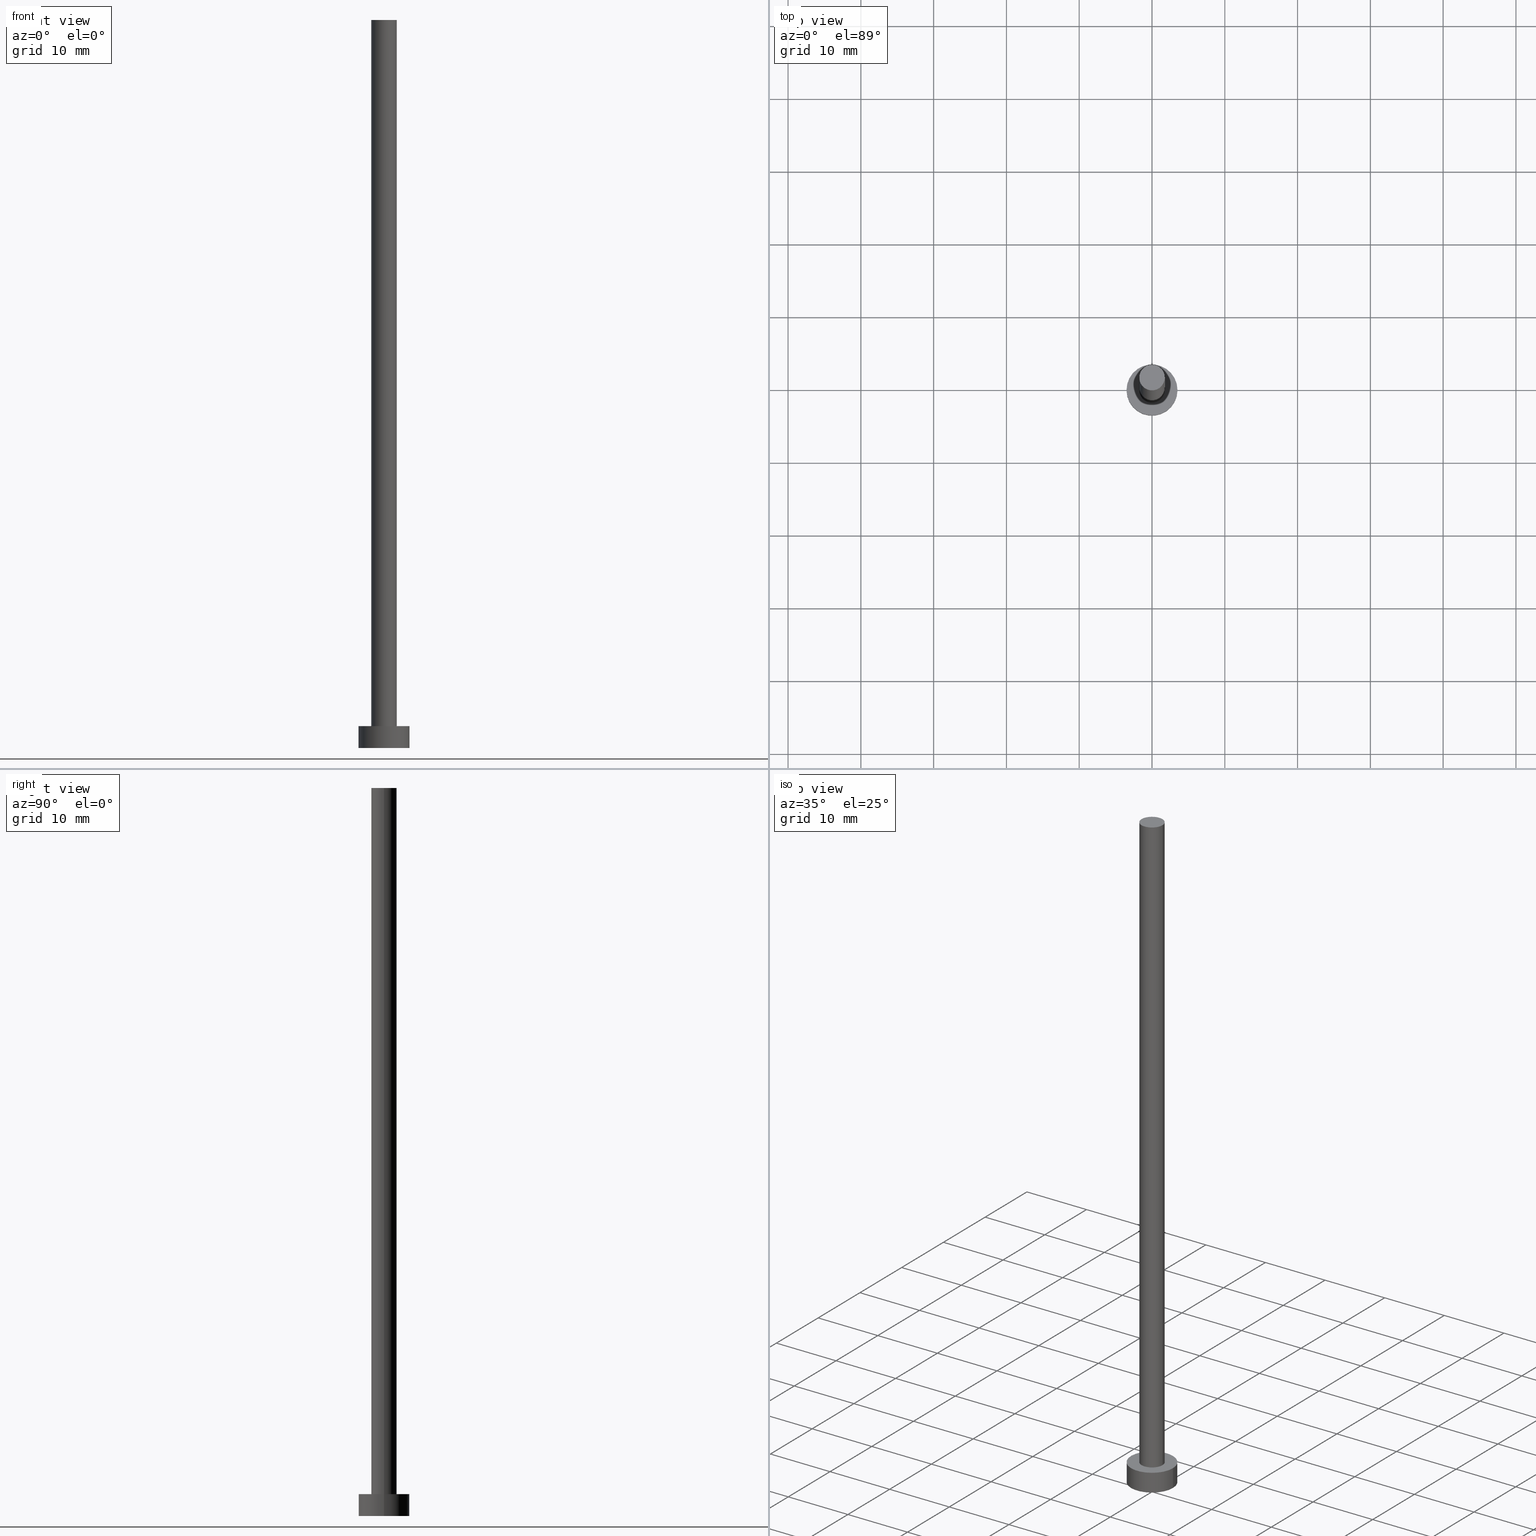
[diagram: canonical four-view strip — front | top / right | iso, engineering-drawing reading convention]
A machine part, canonical four-view strip (front | top / right | iso — engineering-drawing reading convention). The complete STEP part file that produces these views, byte-faithful:
ISO-10303-21;
HEADER;
FILE_DESCRIPTION (( 'STEP AP203' ),
    '1' );
FILE_NAME ('6c43.STEP',
    '2023-02-13T16:24:13',
    ( '' ),
    ( '' ),
    'SwSTEP 2.0',
    'SolidWorks 2019',
    '' );
FILE_SCHEMA (( 'CONFIG_CONTROL_DESIGN' ));
ENDSEC;

DATA;
#1 = PERSON_AND_ORGANIZATION ( #102, #146 ) ;
#2 = CARTESIAN_POINT ( 'NONE',  ( 0.000000000000000000, 0.000000000000000000, 100.0000000000000000 ) ) ;
#3 = PERSON_AND_ORGANIZATION ( #102, #146 ) ;
#4 = DIRECTION ( 'NONE',  ( 1.000000000000000000, 0.000000000000000000, 0.000000000000000000 ) ) ;
#5 = PERSON_AND_ORGANIZATION ( #102, #146 ) ;
#6 = DATE_AND_TIME ( #145, #234 ) ;
#7 = EDGE_CURVE ( 'NONE', #201, #73, #162, .T. ) ;
#8 = CARTESIAN_POINT ( 'NONE',  ( 1.750000000000000000, 2.143131898507867804E-16, 100.0000000000000000 ) ) ;
#9 = CARTESIAN_POINT ( 'NONE',  ( 0.000000000000000000, 0.000000000000000000, 100.0000000000000000 ) ) ;
#10 = CARTESIAN_POINT ( 'NONE',  ( 0.000000000000000000, 0.000000000000000000, 3.000000000000000000 ) ) ;
#11 = VERTEX_POINT ( 'NONE', #252 ) ;
#12 = ADVANCED_FACE ( 'NONE', ( #198 ), #95, .T. ) ;
#13 = EDGE_CURVE ( 'NONE', #233, #201, #217, .T. ) ;
#14 = ORIENTED_EDGE ( 'NONE', *, *, #24, .F. ) ;
#15 = APPLICATION_CONTEXT ( 'configuration controlled 3d designs of mechanical parts and assemblies' ) ;
#16 = DIRECTION ( 'NONE',  ( 1.000000000000000000, 0.000000000000000000, 0.000000000000000000 ) ) ;
#17 = DIRECTION ( 'NONE',  ( -1.000000000000000000, 0.000000000000000000, 0.000000000000000000 ) ) ;
#18 = PRODUCT ( '6c43', '6c43', '', ( #45 ) ) ;
#19 = AXIS2_PLACEMENT_3D ( 'NONE', #2, #194, #16 ) ;
#20 = DIRECTION ( 'NONE',  ( 0.000000000000000000, 0.000000000000000000, 1.000000000000000000 ) ) ;
#21 = CARTESIAN_POINT ( 'NONE',  ( 0.000000000000000000, 0.000000000000000000, 0.000000000000000000 ) ) ;
#22 = DIRECTION ( 'NONE',  ( -0.000000000000000000, -0.000000000000000000, -1.000000000000000000 ) ) ;
#23 = AXIS2_PLACEMENT_3D ( 'NONE', #149, #20, #109 ) ;
#24 = EDGE_CURVE ( 'NONE', #11, #192, #119, .T. ) ;
#25 = CALENDAR_DATE ( 2023, 13, 2 ) ;
#26 = ORIENTED_EDGE ( 'NONE', *, *, #206, .T. ) ;
#27 = APPROVAL_ROLE ( '' ) ;
#28 = MANIFOLD_SOLID_BREP ( 'P�idat vysunut�m3', #152 ) ;
#29 = SECURITY_CLASSIFICATION ( '', '', #125 ) ;
#30 = CC_DESIGN_PERSON_AND_ORGANIZATION_ASSIGNMENT ( #3, #158, ( #180 ) ) ;
#31 = PLANE ( 'NONE',  #227 ) ;
#32 = ORIENTED_EDGE ( 'NONE', *, *, #112, .F. ) ;
#33 = CARTESIAN_POINT ( 'NONE',  ( 1.750000000000000000, 2.143131898507867804E-16, 3.000000000000000000 ) ) ;
#34 = CYLINDRICAL_SURFACE ( 'NONE', #164, 3.500000000000000000 ) ;
#35 = EDGE_LOOP ( 'NONE', ( #246, #211 ) ) ;
#36 = CARTESIAN_POINT ( 'NONE',  ( 3.500000000000000000, 4.286263797015736595E-16, 3.000000000000000000 ) ) ;
#37 = DIRECTION ( 'NONE',  ( 0.000000000000000000, 0.000000000000000000, 1.000000000000000000 ) ) ;
#38 = CARTESIAN_POINT ( 'NONE',  ( 0.000000000000000000, 0.000000000000000000, 0.000000000000000000 ) ) ;
#39 = DATE_AND_TIME ( #105, #150 ) ;
#40 = CYLINDRICAL_SURFACE ( 'NONE', #247, 1.750000000000000000 ) ;
#41 = DATE_AND_TIME ( #179, #241 ) ;
#42 = DIRECTION ( 'NONE',  ( 1.000000000000000000, 0.000000000000000000, -0.000000000000000000 ) ) ;
#43 = PERSON_AND_ORGANIZATION_ROLE ( 'creator' ) ;
#44 = COORDINATED_UNIVERSAL_TIME_OFFSET ( 1, 0, .AHEAD. ) ;
#45 = MECHANICAL_CONTEXT ( 'NONE', #15, 'mechanical' ) ;
#46 = CC_DESIGN_PERSON_AND_ORGANIZATION_ASSIGNMENT ( #82, #178, ( #187 ) ) ;
#47 = ADVANCED_FACE ( 'NONE', ( #113, #81 ), #193, .T. ) ;
#48 = ORIENTED_EDGE ( 'NONE', *, *, #224, .F. ) ;
#49 = FACE_OUTER_BOUND ( 'NONE', #35, .T. ) ;
#50 = AXIS2_PLACEMENT_3D ( 'NONE', #219, #235, #96 ) ;
#51 = CARTESIAN_POINT ( 'NONE',  ( -1.750000000000000000, 0.000000000000000000, 3.000000000000000000 ) ) ;
#52 = EDGE_CURVE ( 'NONE', #55, #11, #54, .T. ) ;
#53 = ORIENTED_EDGE ( 'NONE', *, *, #24, .T. ) ;
#54 = CIRCLE ( 'NONE', #19, 1.750000000000000000 ) ;
#55 = VERTEX_POINT ( 'NONE', #236 ) ;
#56 = DESIGN_CONTEXT ( 'detailed design', #132, 'design' ) ;
#57 = ADVANCED_FACE ( 'NONE', ( #75 ), #40, .T. ) ;
#58 =( NAMED_UNIT ( * ) PLANE_ANGLE_UNIT ( ) SI_UNIT ( $, .RADIAN. ) );
#59 = AXIS2_PLACEMENT_3D ( 'NONE', #97, #175, #115 ) ;
#60 = AXIS2_PLACEMENT_3D ( 'NONE', #71, #91, #245 ) ;
#61 = EDGE_LOOP ( 'NONE', ( #147, #48 ) ) ;
#62 = DIRECTION ( 'NONE',  ( -1.000000000000000000, 0.000000000000000000, 0.000000000000000000 ) ) ;
#63 = PERSON_AND_ORGANIZATION_ROLE ( 'classification_officer' ) ;
#64 = CIRCLE ( 'NONE', #23, 1.750000000000000000 ) ;
#65 = APPROVAL_DATE_TIME ( #218, #139 ) ;
#66 = PERSON_AND_ORGANIZATION ( #102, #146 ) ;
#67 = DIRECTION ( 'NONE',  ( 1.000000000000000000, 0.000000000000000000, 0.000000000000000000 ) ) ;
#68 = EDGE_CURVE ( 'NONE', #192, #92, #199, .T. ) ;
#69 = LINE ( 'NONE', #8, #251 ) ;
#70 = ORIENTED_EDGE ( 'NONE', *, *, #52, .F. ) ;
#71 = CARTESIAN_POINT ( 'NONE',  ( 0.000000000000000000, 0.000000000000000000, 0.000000000000000000 ) ) ;
#72 = EDGE_LOOP ( 'NONE', ( #169, #107, #53, #110 ) ) ;
#73 = VERTEX_POINT ( 'NONE', #117 ) ;
#74 = EDGE_CURVE ( 'NONE', #73, #201, #213, .T. ) ;
#75 = FACE_OUTER_BOUND ( 'NONE', #72, .T. ) ;
#76 = DIRECTION ( 'NONE',  ( -0.000000000000000000, -0.000000000000000000, -1.000000000000000000 ) ) ;
#77 = DIRECTION ( 'NONE',  ( 1.000000000000000000, 0.000000000000000000, -0.000000000000000000 ) ) ;
#78 = ADVANCED_FACE ( 'NONE', ( #254 ), #154, .T. ) ;
#79 = CC_DESIGN_APPROVAL ( #174, ( #29 ) ) ;
#80 = DATE_TIME_ROLE ( 'classification_date' ) ;
#81 = FACE_OUTER_BOUND ( 'NONE', #159, .T. ) ;
#82 = PERSON_AND_ORGANIZATION ( #102, #146 ) ;
#83 = DIRECTION ( 'NONE',  ( -0.000000000000000000, -0.000000000000000000, -1.000000000000000000 ) ) ;
#84 = APPLICATION_PROTOCOL_DEFINITION ( 'international standard', 'config_control_design', 1994, #15 ) ;
#85 = SHAPE_DEFINITION_REPRESENTATION ( #86, #89 ) ;
#86 = PRODUCT_DEFINITION_SHAPE ( 'NONE', 'NONE',  #187 ) ;
#87 = CIRCLE ( 'NONE', #134, 3.500000000000000000 ) ;
#88 = LINE ( 'NONE', #148, #168 ) ;
#89 = ADVANCED_BREP_SHAPE_REPRESENTATION ( '6c43', ( #28, #155 ), #123 ) ;
#90 = DIRECTION ( 'NONE',  ( 0.000000000000000000, 0.000000000000000000, 1.000000000000000000 ) ) ;
#91 = DIRECTION ( 'NONE',  ( 0.000000000000000000, 0.000000000000000000, 1.000000000000000000 ) ) ;
#92 = VERTEX_POINT ( 'NONE', #33 ) ;
#93 = LOCAL_TIME ( 17, 24, 13.00000000000000000, #216 ) ;
#94 = CC_DESIGN_PERSON_AND_ORGANIZATION_ASSIGNMENT ( #238, #63, ( #29 ) ) ;
#95 = CYLINDRICAL_SURFACE ( 'NONE', #50, 1.750000000000000000 ) ;
#96 = DIRECTION ( 'NONE',  ( -1.000000000000000000, 0.000000000000000000, 0.000000000000000000 ) ) ;
#97 = CARTESIAN_POINT ( 'NONE',  ( 0.000000000000000000, 0.000000000000000000, 3.000000000000000000 ) ) ;
#98 = CC_DESIGN_PERSON_AND_ORGANIZATION_ASSIGNMENT ( #66, #184, ( #18 ) ) ;
#99 = FACE_OUTER_BOUND ( 'NONE', #140, .T. ) ;
#100 = ORIENTED_EDGE ( 'NONE', *, *, #161, .T. ) ;
#101 = CALENDAR_DATE ( 2023, 13, 2 ) ;
#102 = PERSON ( 'NEUR�EN�', 'NEUR�EN�', 'NEUR�EN�', ('NEUR�EN�'), ('NEUR�EN�'), ('NEUR�EN�') ) ;
#103 = CARTESIAN_POINT ( 'NONE',  ( 0.000000000000000000, 0.000000000000000000, 0.000000000000000000 ) ) ;
#104 = CC_DESIGN_PERSON_AND_ORGANIZATION_ASSIGNMENT ( #1, #43, ( #180 ) ) ;
#105 = CALENDAR_DATE ( 2023, 13, 2 ) ;
#106 = DIRECTION ( 'NONE',  ( 0.000000000000000000, 0.000000000000000000, 1.000000000000000000 ) ) ;
#107 = ORIENTED_EDGE ( 'NONE', *, *, #170, .F. ) ;
#108 = DIRECTION ( 'NONE',  ( 1.000000000000000000, 0.000000000000000000, 0.000000000000000000 ) ) ;
#109 = DIRECTION ( 'NONE',  ( 1.000000000000000000, 0.000000000000000000, 0.000000000000000000 ) ) ;
#110 = ORIENTED_EDGE ( 'NONE', *, *, #68, .T. ) ;
#111 = CARTESIAN_POINT ( 'NONE',  ( -1.750000000000000000, 0.000000000000000000, 100.0000000000000000 ) ) ;
#112 = EDGE_CURVE ( 'NONE', #209, #73, #88, .T. ) ;
#113 = FACE_BOUND ( 'NONE', #61, .T. ) ;
#114 = VECTOR ( 'NONE', #83, 1000.000000000000000 ) ;
#115 = DIRECTION ( 'NONE',  ( -1.000000000000000000, 0.000000000000000000, 0.000000000000000000 ) ) ;
#116 = AXIS2_PLACEMENT_3D ( 'NONE', #129, #90, #108 ) ;
#117 = CARTESIAN_POINT ( 'NONE',  ( -3.500000000000000000, 0.000000000000000000, 0.000000000000000000 ) ) ;
#118 = APPLICATION_PROTOCOL_DEFINITION ( 'international standard', 'config_control_design', 1994, #132 ) ;
#119 = LINE ( 'NONE', #111, #239 ) ;
#120 = DIRECTION ( 'NONE',  ( 0.000000000000000000, 0.000000000000000000, 1.000000000000000000 ) ) ;
#121 = CC_DESIGN_DATE_AND_TIME_ASSIGNMENT ( #223, #200, ( #187 ) ) ;
#122 = ORIENTED_EDGE ( 'NONE', *, *, #7, .F. ) ;
#123 =( GEOMETRIC_REPRESENTATION_CONTEXT ( 3 ) GLOBAL_UNCERTAINTY_ASSIGNED_CONTEXT ( ( #136 ) ) GLOBAL_UNIT_ASSIGNED_CONTEXT ( ( #177, #58, #255 ) ) REPRESENTATION_CONTEXT ( 'NONE', 'WORKASPACE' ) );
#124 = PERSON_AND_ORGANIZATION ( #102, #146 ) ;
#125 = SECURITY_CLASSIFICATION_LEVEL ( 'unclassified' ) ;
#126 = AXIS2_PLACEMENT_3D ( 'NONE', #171, #250, #42 ) ;
#127 = CC_DESIGN_SECURITY_CLASSIFICATION ( #29, ( #180 ) ) ;
#128 = EDGE_LOOP ( 'NONE', ( #249, #173, #212, #32 ) ) ;
#129 = CARTESIAN_POINT ( 'NONE',  ( 0.000000000000000000, 0.000000000000000000, 3.000000000000000000 ) ) ;
#130 = DIRECTION ( 'NONE',  ( 0.000000000000000000, 0.000000000000000000, 1.000000000000000000 ) ) ;
#131 = EDGE_LOOP ( 'NONE', ( #70, #100, #229, #14 ) ) ;
#132 = APPLICATION_CONTEXT ( 'configuration controlled 3d designs of mechanical parts and assemblies' ) ;
#133 = ORIENTED_EDGE ( 'NONE', *, *, #74, .F. ) ;
#134 = AXIS2_PLACEMENT_3D ( 'NONE', #10, #130, #137 ) ;
#135 = ORIENTED_EDGE ( 'NONE', *, *, #189, .F. ) ;
#136 = UNCERTAINTY_MEASURE_WITH_UNIT (LENGTH_MEASURE( 1.000000000000000082E-05 ), #177, 'distance_accuracy_value', 'NONE');
#137 = DIRECTION ( 'NONE',  ( 1.000000000000000000, 0.000000000000000000, 0.000000000000000000 ) ) ;
#138 = AXIS2_PLACEMENT_3D ( 'NONE', #38, #210, #67 ) ;
#139 = APPROVAL ( #242, 'NEUR�EN�' ) ;
#140 = EDGE_LOOP ( 'NONE', ( #153, #135, #228, #230 ) ) ;
#141 = APPROVAL_STATUS ( 'not_yet_approved' ) ;
#142 = CARTESIAN_POINT ( 'NONE',  ( 0.000000000000000000, 0.000000000000000000, 3.000000000000000000 ) ) ;
#143 = COORDINATED_UNIVERSAL_TIME_OFFSET ( 1, 0, .AHEAD. ) ;
#144 = LOCAL_TIME ( 17, 24, 13.00000000000000000, #222 ) ;
#145 = CALENDAR_DATE ( 2023, 13, 2 ) ;
#146 = ORGANIZATION ( 'NEUR�EN�', 'NEUR�EN�', '' ) ;
#147 = ORIENTED_EDGE ( 'NONE', *, *, #68, .F. ) ;
#148 = CARTESIAN_POINT ( 'NONE',  ( -3.500000000000000000, 0.000000000000000000, 3.000000000000000000 ) ) ;
#149 = CARTESIAN_POINT ( 'NONE',  ( 0.000000000000000000, 0.000000000000000000, 3.000000000000000000 ) ) ;
#150 = LOCAL_TIME ( 17, 24, 13.00000000000000000, #197 ) ;
#151 = CARTESIAN_POINT ( 'NONE',  ( 3.500000000000000000, 4.286263797015736595E-16, 3.000000000000000000 ) ) ;
#152 = CLOSED_SHELL ( 'NONE', ( #12, #78, #232, #47, #215, #57, #191 ) ) ;
#153 = ORIENTED_EDGE ( 'NONE', *, *, #13, .F. ) ;
#154 = CYLINDRICAL_SURFACE ( 'NONE', #59, 3.500000000000000000 ) ;
#155 = AXIS2_PLACEMENT_3D ( 'NONE', #21, #120, #160 ) ;
#156 = CARTESIAN_POINT ( 'NONE',  ( 0.000000000000000000, 0.000000000000000000, 100.0000000000000000 ) ) ;
#157 = ORIENTED_EDGE ( 'NONE', *, *, #189, .T. ) ;
#158 = PERSON_AND_ORGANIZATION_ROLE ( 'design_supplier' ) ;
#159 = EDGE_LOOP ( 'NONE', ( #157, #26 ) ) ;
#160 = DIRECTION ( 'NONE',  ( 1.000000000000000000, 0.000000000000000000, 0.000000000000000000 ) ) ;
#161 = EDGE_CURVE ( 'NONE', #55, #92, #69, .T. ) ;
#162 = CIRCLE ( 'NONE', #172, 3.500000000000000000 ) ;
#163 = APPROVAL ( #141, 'NEUR�EN�' ) ;
#164 = AXIS2_PLACEMENT_3D ( 'NONE', #167, #195, #17 ) ;
#165 = CARTESIAN_POINT ( 'NONE',  ( 0.000000000000000000, 0.000000000000000000, 100.0000000000000000 ) ) ;
#166 = PLANE ( 'NONE',  #60 ) ;
#167 = CARTESIAN_POINT ( 'NONE',  ( 0.000000000000000000, 0.000000000000000000, 3.000000000000000000 ) ) ;
#168 = VECTOR ( 'NONE', #225, 1000.000000000000000 ) ;
#169 = ORIENTED_EDGE ( 'NONE', *, *, #161, .F. ) ;
#170 = EDGE_CURVE ( 'NONE', #11, #55, #221, .T. ) ;
#171 = CARTESIAN_POINT ( 'NONE',  ( 0.000000000000000000, 0.000000000000000000, 3.000000000000000000 ) ) ;
#172 = AXIS2_PLACEMENT_3D ( 'NONE', #103, #183, #4 ) ;
#173 = ORIENTED_EDGE ( 'NONE', *, *, #13, .T. ) ;
#174 = APPROVAL ( #202, 'NEUR�EN�' ) ;
#175 = DIRECTION ( 'NONE',  ( -0.000000000000000000, -0.000000000000000000, -1.000000000000000000 ) ) ;
#176 = APPROVAL_PERSON_ORGANIZATION ( #220, #163, #240 ) ;
#177 =( LENGTH_UNIT ( ) NAMED_UNIT ( * ) SI_UNIT ( .MILLI., .METRE. ) );
#178 = PERSON_AND_ORGANIZATION_ROLE ( 'creator' ) ;
#179 = CALENDAR_DATE ( 2023, 13, 2 ) ;
#180 = PRODUCT_DEFINITION_FORMATION_WITH_SPECIFIED_SOURCE ( 'LIBOVOLN�', '', #18, .NOT_KNOWN. ) ;
#181 = DIRECTION ( 'NONE',  ( -0.000000000000000000, -0.000000000000000000, -1.000000000000000000 ) ) ;
#182 = APPROVAL_DATE_TIME ( #41, #163 ) ;
#183 = DIRECTION ( 'NONE',  ( 0.000000000000000000, 0.000000000000000000, 1.000000000000000000 ) ) ;
#184 = PERSON_AND_ORGANIZATION_ROLE ( 'design_owner' ) ;
#185 = APPROVAL_DATE_TIME ( #39, #174 ) ;
#186 = CC_DESIGN_APPROVAL ( #139, ( #187 ) ) ;
#187 = PRODUCT_DEFINITION ( 'NEZN�M�', '', #180, #56 ) ;
#188 = DIRECTION ( 'NONE',  ( 1.000000000000000000, 0.000000000000000000, 0.000000000000000000 ) ) ;
#189 = EDGE_CURVE ( 'NONE', #209, #233, #87, .T. ) ;
#190 = CARTESIAN_POINT ( 'NONE',  ( -3.500000000000000000, 0.000000000000000000, 3.000000000000000000 ) ) ;
#191 = ADVANCED_FACE ( 'NONE', ( #49 ), #31, .T. ) ;
#192 = VERTEX_POINT ( 'NONE', #51 ) ;
#193 = PLANE ( 'NONE',  #126 ) ;
#194 = DIRECTION ( 'NONE',  ( 0.000000000000000000, 0.000000000000000000, 1.000000000000000000 ) ) ;
#195 = DIRECTION ( 'NONE',  ( -0.000000000000000000, -0.000000000000000000, -1.000000000000000000 ) ) ;
#196 = DIRECTION ( 'NONE',  ( 1.000000000000000000, 0.000000000000000000, 0.000000000000000000 ) ) ;
#197 = COORDINATED_UNIVERSAL_TIME_OFFSET ( 1, 0, .AHEAD. ) ;
#198 = FACE_OUTER_BOUND ( 'NONE', #131, .T. ) ;
#199 = CIRCLE ( 'NONE', #231, 1.750000000000000000 ) ;
#200 = DATE_TIME_ROLE ( 'creation_date' ) ;
#201 = VERTEX_POINT ( 'NONE', #208 ) ;
#202 = APPROVAL_STATUS ( 'not_yet_approved' ) ;
#203 = APPROVAL_ROLE ( '' ) ;
#204 = CC_DESIGN_DATE_AND_TIME_ASSIGNMENT ( #6, #80, ( #29 ) ) ;
#205 = FACE_OUTER_BOUND ( 'NONE', #244, .T. ) ;
#206 = EDGE_CURVE ( 'NONE', #233, #209, #253, .T. ) ;
#207 = AXIS2_PLACEMENT_3D ( 'NONE', #165, #37, #188 ) ;
#208 = CARTESIAN_POINT ( 'NONE',  ( 3.500000000000000000, 4.286263797015736595E-16, 0.000000000000000000 ) ) ;
#209 = VERTEX_POINT ( 'NONE', #190 ) ;
#210 = DIRECTION ( 'NONE',  ( 0.000000000000000000, 0.000000000000000000, 1.000000000000000000 ) ) ;
#211 = ORIENTED_EDGE ( 'NONE', *, *, #52, .T. ) ;
#212 = ORIENTED_EDGE ( 'NONE', *, *, #7, .T. ) ;
#213 = CIRCLE ( 'NONE', #138, 3.500000000000000000 ) ;
#214 = APPROVAL_PERSON_ORGANIZATION ( #5, #139, #27 ) ;
#215 = ADVANCED_FACE ( 'NONE', ( #205 ), #166, .F. ) ;
#216 = COORDINATED_UNIVERSAL_TIME_OFFSET ( 1, 0, .AHEAD. ) ;
#217 = LINE ( 'NONE', #36, #114 ) ;
#218 = DATE_AND_TIME ( #25, #93 ) ;
#219 = CARTESIAN_POINT ( 'NONE',  ( 0.000000000000000000, 0.000000000000000000, 100.0000000000000000 ) ) ;
#220 = PERSON_AND_ORGANIZATION ( #102, #146 ) ;
#221 = CIRCLE ( 'NONE', #207, 1.750000000000000000 ) ;
#222 = COORDINATED_UNIVERSAL_TIME_OFFSET ( 1, 0, .AHEAD. ) ;
#223 = DATE_AND_TIME ( #101, #144 ) ;
#224 = EDGE_CURVE ( 'NONE', #92, #192, #64, .T. ) ;
#225 = DIRECTION ( 'NONE',  ( -0.000000000000000000, -0.000000000000000000, -1.000000000000000000 ) ) ;
#226 = DIRECTION ( 'NONE',  ( 0.000000000000000000, 0.000000000000000000, 1.000000000000000000 ) ) ;
#227 = AXIS2_PLACEMENT_3D ( 'NONE', #9, #226, #77 ) ;
#228 = ORIENTED_EDGE ( 'NONE', *, *, #112, .T. ) ;
#229 = ORIENTED_EDGE ( 'NONE', *, *, #224, .T. ) ;
#230 = ORIENTED_EDGE ( 'NONE', *, *, #74, .T. ) ;
#231 = AXIS2_PLACEMENT_3D ( 'NONE', #142, #106, #196 ) ;
#232 = ADVANCED_FACE ( 'NONE', ( #99 ), #34, .T. ) ;
#233 = VERTEX_POINT ( 'NONE', #151 ) ;
#234 = LOCAL_TIME ( 17, 24, 13.00000000000000000, #143 ) ;
#235 = DIRECTION ( 'NONE',  ( -0.000000000000000000, -0.000000000000000000, -1.000000000000000000 ) ) ;
#236 = CARTESIAN_POINT ( 'NONE',  ( 1.750000000000000000, 2.143131898507867804E-16, 100.0000000000000000 ) ) ;
#237 = PRODUCT_RELATED_PRODUCT_CATEGORY ( 'detail', '', ( #18 ) ) ;
#238 = PERSON_AND_ORGANIZATION ( #102, #146 ) ;
#239 = VECTOR ( 'NONE', #181, 1000.000000000000000 ) ;
#240 = APPROVAL_ROLE ( '' ) ;
#241 = LOCAL_TIME ( 17, 24, 13.00000000000000000, #44 ) ;
#242 = APPROVAL_STATUS ( 'not_yet_approved' ) ;
#243 = APPROVAL_PERSON_ORGANIZATION ( #124, #174, #203 ) ;
#244 = EDGE_LOOP ( 'NONE', ( #133, #122 ) ) ;
#245 = DIRECTION ( 'NONE',  ( 1.000000000000000000, 0.000000000000000000, -0.000000000000000000 ) ) ;
#246 = ORIENTED_EDGE ( 'NONE', *, *, #170, .T. ) ;
#247 = AXIS2_PLACEMENT_3D ( 'NONE', #156, #22, #62 ) ;
#248 = CC_DESIGN_APPROVAL ( #163, ( #180 ) ) ;
#249 = ORIENTED_EDGE ( 'NONE', *, *, #206, .F. ) ;
#250 = DIRECTION ( 'NONE',  ( 0.000000000000000000, 0.000000000000000000, 1.000000000000000000 ) ) ;
#251 = VECTOR ( 'NONE', #76, 1000.000000000000000 ) ;
#252 = CARTESIAN_POINT ( 'NONE',  ( -1.750000000000000000, 0.000000000000000000, 100.0000000000000000 ) ) ;
#253 = CIRCLE ( 'NONE', #116, 3.500000000000000000 ) ;
#254 = FACE_OUTER_BOUND ( 'NONE', #128, .T. ) ;
#255 =( NAMED_UNIT ( * ) SI_UNIT ( $, .STERADIAN. ) SOLID_ANGLE_UNIT ( ) );
ENDSEC;
END-ISO-10303-21;
